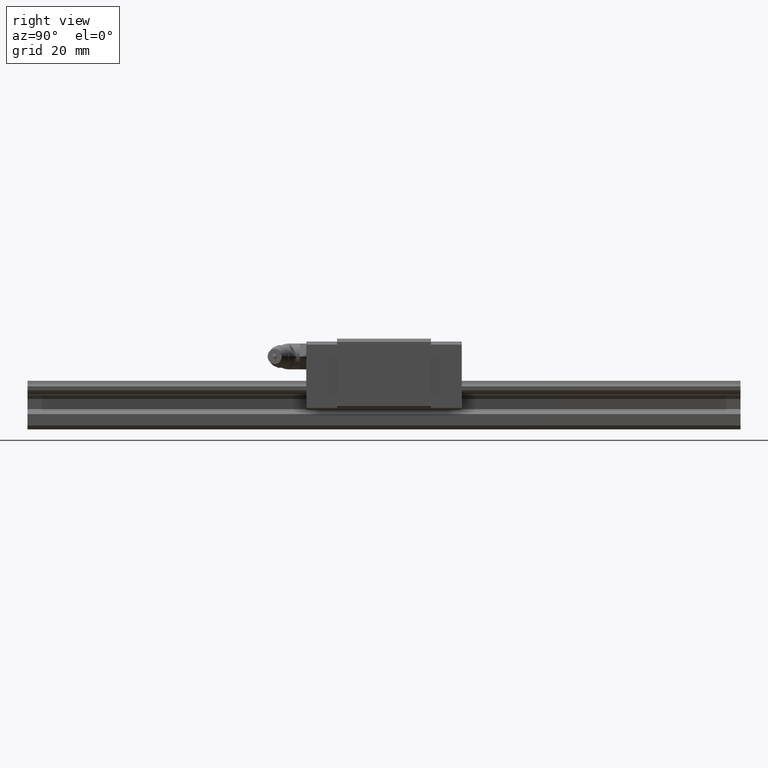
[diagram: clean part render]
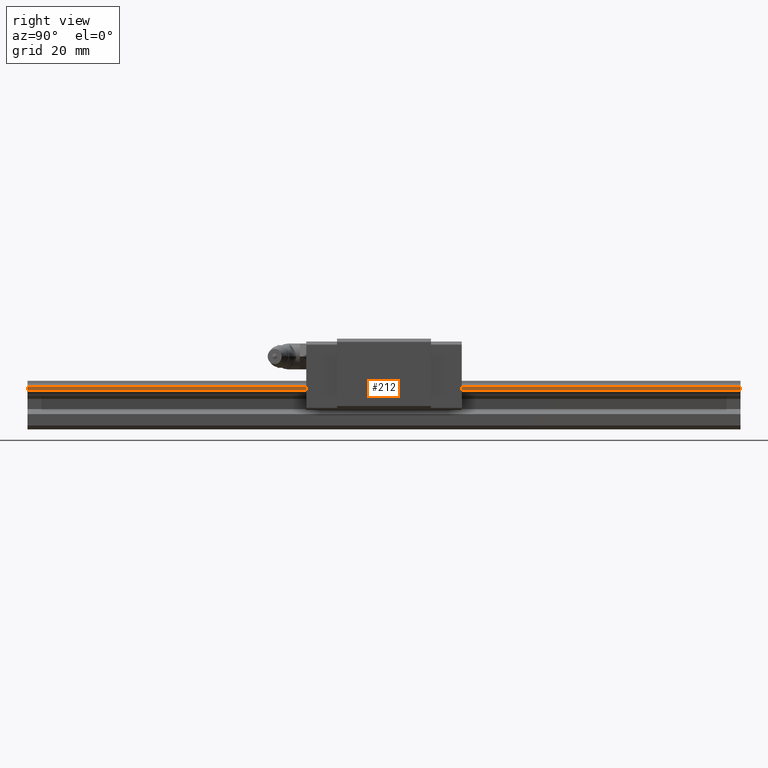
[diagram: same view with one face highlighted and labeled with its STEP entity id]
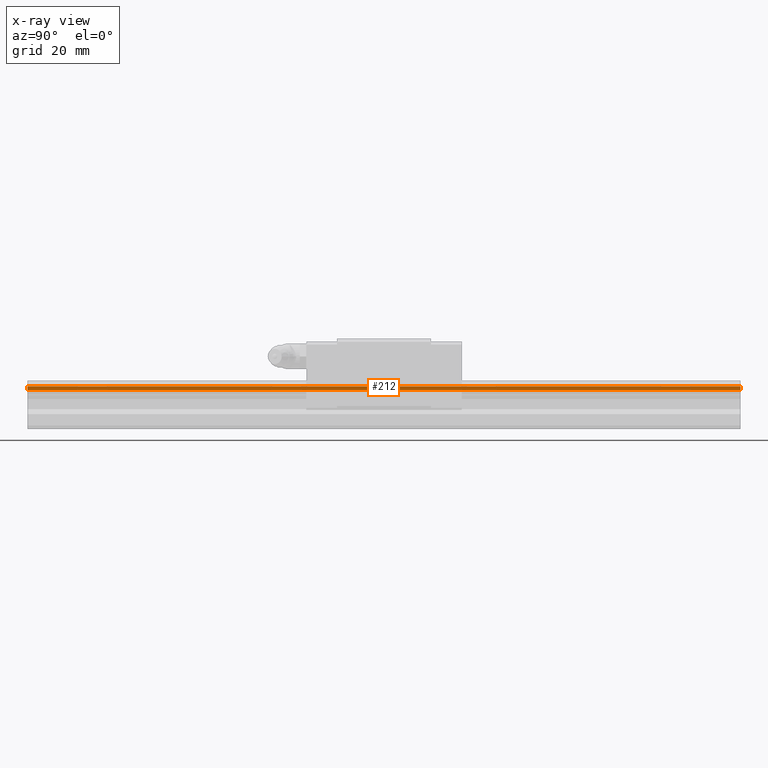
[diagram: x-ray of the same camera — body ghosted, the highlighted face saturated]
A machine part, right view. The second image highlights one B-rep face of the part: STEP entity #212.
The next image is the same camera in x-ray: the body ghosted, the highlighted face saturated — about 0% of this face is hidden behind the body in this view.
In plain terms, the highlighted planar face has unit normal (-1, 0, 0).
Its self-contained STEP definition (entity closure, byte-faithful):
#212=ADVANCED_FACE('',(#444),#445,.F.);
#444=FACE_OUTER_BOUND('',#830,.T.);
#445=PLANE('',#831);
#830=EDGE_LOOP('',(#1579,#1580,#1581,#1582));
#831=AXIS2_PLACEMENT_3D('',#1583,#1584,#1585);
#1579=ORIENTED_EDGE('',*,*,#2786,.T.);
#1580=ORIENTED_EDGE('',*,*,#2865,.F.);
#1581=ORIENTED_EDGE('',*,*,#2853,.F.);
#1582=ORIENTED_EDGE('',*,*,#2871,.T.);
#1583=CARTESIAN_POINT('',(9.93,110.0,12.6739577758));
#1584=DIRECTION('',(-1.0,0.0,0.0));
#1585=DIRECTION('',(0.0,0.0,1.0));
#2786=EDGE_CURVE('',#3337,#3335,#3338,.T.);
#2853=EDGE_CURVE('',#3437,#3439,#3440,.T.);
#2865=EDGE_CURVE('',#3439,#3335,#3456,.T.);
#2871=EDGE_CURVE('',#3437,#3337,#3462,.T.);
#3335=VERTEX_POINT('',#4175);
#3337=VERTEX_POINT('',#4178);
#3338=LINE('',#4179,#4180);
#3437=VERTEX_POINT('',#4324);
#3439=VERTEX_POINT('',#4327);
#3440=LINE('',#4328,#4329);
#3456=LINE('',#4355,#4356);
#3462=LINE('',#4367,#4368);
#4175=CARTESIAN_POINT('',(9.93,-110.0,11.4260602242));
#4178=CARTESIAN_POINT('',(9.93,-110.0,12.6739577758));
#4179=CARTESIAN_POINT('',(9.93,-110.0,12.6739577758));
#4180=VECTOR('',#5445,1000.0);
#4324=CARTESIAN_POINT('',(9.93,110.0,12.6739577758));
#4327=CARTESIAN_POINT('',(9.93,110.0,11.4260602242));
#4328=CARTESIAN_POINT('',(9.93,110.0,12.6739577758));
#4329=VECTOR('',#5552,1000.0);
#4355=CARTESIAN_POINT('',(9.93,110.0,11.4260602242));
#4356=VECTOR('',#5566,1000.0);
#4367=CARTESIAN_POINT('',(9.93,110.0,12.6739577758));
#4368=VECTOR('',#5572,1000.0);
#5445=DIRECTION('',(0.0,0.0,-1.0));
#5552=DIRECTION('',(0.0,0.0,-1.0));
#5566=DIRECTION('',(0.0,-1.0,0.0));
#5572=DIRECTION('',(0.0,-1.0,0.0));